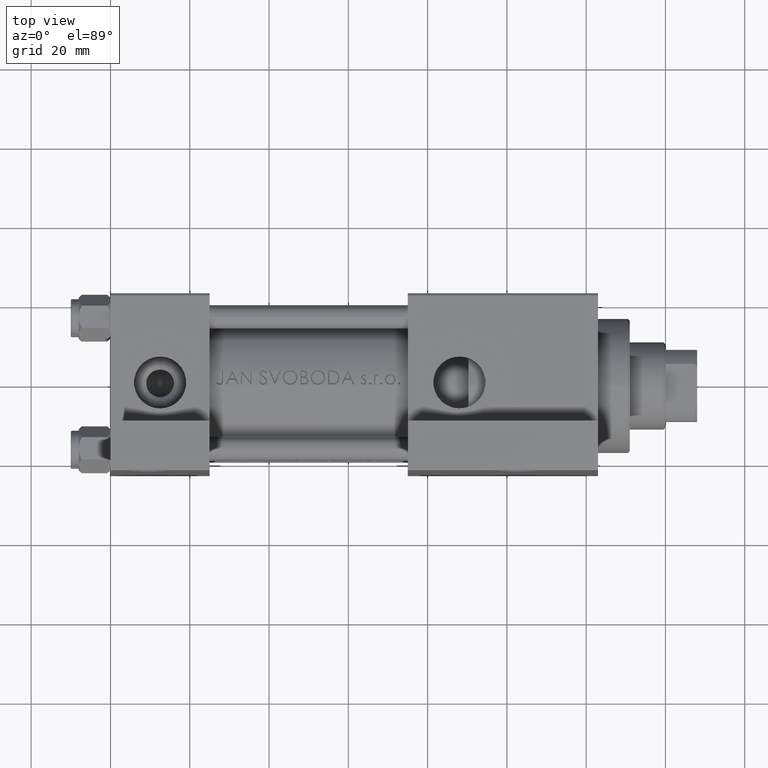
[diagram: clean part render]
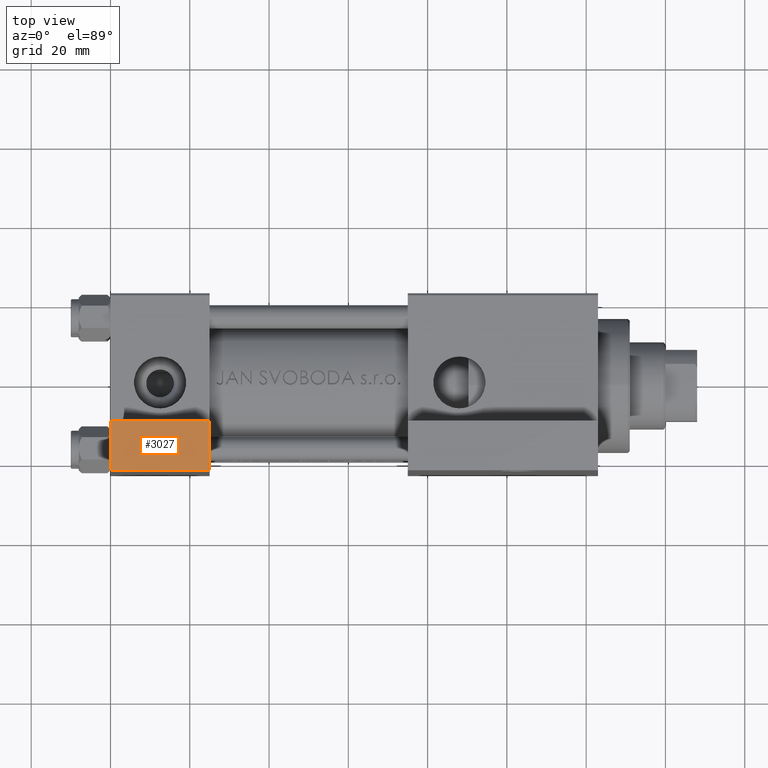
[diagram: same view with one face highlighted and labeled with its STEP entity id]
A machine part, top view. The second image highlights one B-rep face of the part: STEP entity #3027.
In plain terms, the highlighted planar face has unit normal (-0, 0, 1).
Its self-contained STEP definition (entity closure, byte-faithful):
#1429 = CARTESIAN_POINT ( 'NONE',  ( -3.595989349422702816E-17, -41.99999999999998579, 21.70567772497540560 ) ) ;
#2963 = ORIENTED_EDGE ( 'NONE', *, *, #33202, .F. ) ;
#3027 = ADVANCED_FACE ( 'NONE', ( #9840 ), #5062, .T. ) ;
#4375 = EDGE_CURVE ( 'NONE', #19734, #31668, #10098, .T. ) ;
#5062 = PLANE ( 'NONE',  #42939 ) ;
#6495 = CARTESIAN_POINT ( 'NONE',  ( -3.595989349422702816E-17, -41.99999999999998579, 21.70567772497540560 ) ) ;
#6932 = VECTOR ( 'NONE', #25734, 1000.000000000000000 ) ;
#7403 = LINE ( 'NONE', #32891, #12489 ) ;
#7962 = ORIENTED_EDGE ( 'NONE', *, *, #23433, .F. ) ;
#9128 = DIRECTION ( 'NONE',  ( -2.775557561562891844E-16, -1.000000000000000000, 1.734723475976806848E-16 ) ) ;
#9840 = FACE_OUTER_BOUND ( 'NONE', #33738, .T. ) ;
#10098 = LINE ( 'NONE', #6495, #6932 ) ;
#10285 = DIRECTION ( 'NONE',  ( 0.000000000000000000, -1.734723475976806848E-16, -1.000000000000000000 ) ) ;
#11588 = CARTESIAN_POINT ( 'NONE',  ( 25.00000000000000000, -42.00000000000000000, -9.999999999999994671 ) ) ;
#12489 = VECTOR ( 'NONE', #10285, 1000.000000000000000 ) ;
#17076 = VECTOR ( 'NONE', #23567, 1000.000000000000000 ) ;
#19523 = ORIENTED_EDGE ( 'NONE', *, *, #43646, .F. ) ;
#19731 = CARTESIAN_POINT ( 'NONE',  ( -3.595989349422856274E-17, -41.99999999999999289, -9.999999999999994671 ) ) ;
#19734 = VERTEX_POINT ( 'NONE', #32757 ) ;
#23433 = EDGE_CURVE ( 'NONE', #19734, #35696, #34620, .T. ) ;
#23567 = DIRECTION ( 'NONE',  ( 1.000000000000000000, -2.775557561562891844E-16, 0.000000000000000000 ) ) ;
#23751 = VERTEX_POINT ( 'NONE', #36689 ) ;
#23806 = DIRECTION ( 'NONE',  ( 1.000000000000000000, -2.775557561562891844E-16, 0.000000000000000000 ) ) ;
#25163 = ORIENTED_EDGE ( 'NONE', *, *, #4375, .T. ) ;
#25734 = DIRECTION ( 'NONE',  ( 0.000000000000000000, -1.734723475976806848E-16, -1.000000000000000000 ) ) ;
#29100 = CARTESIAN_POINT ( 'NONE',  ( -3.595989349422702816E-17, -41.99999999999999289, -22.49999999999999289 ) ) ;
#31668 = VERTEX_POINT ( 'NONE', #34534 ) ;
#32231 = LINE ( 'NONE', #29100, #43343 ) ;
#32757 = CARTESIAN_POINT ( 'NONE',  ( -3.595989349422702816E-17, -41.99999999999999289, -9.999999999999994671 ) ) ;
#32891 = CARTESIAN_POINT ( 'NONE',  ( 25.00000000000000000, -41.99999999999999289, 21.70567772497540560 ) ) ;
#33202 = EDGE_CURVE ( 'NONE', #23751, #31668, #32231, .T. ) ;
#33738 = EDGE_LOOP ( 'NONE', ( #7962, #25163, #2963, #19523 ) ) ;
#34534 = CARTESIAN_POINT ( 'NONE',  ( -3.595989349422702816E-17, -41.99999999999999289, -22.49999999999999289 ) ) ;
#34620 = LINE ( 'NONE', #19731, #17076 ) ;
#35696 = VERTEX_POINT ( 'NONE', #11588 ) ;
#36689 = CARTESIAN_POINT ( 'NONE',  ( 25.00000000000000000, -42.00000000000000000, -22.49999999999999289 ) ) ;
#42939 = AXIS2_PLACEMENT_3D ( 'NONE', #1429, #9128, #23806 ) ;
#43343 = VECTOR ( 'NONE', #43759, 1000.000000000000000 ) ;
#43646 = EDGE_CURVE ( 'NONE', #35696, #23751, #7403, .T. ) ;
#43759 = DIRECTION ( 'NONE',  ( -1.000000000000000000, 2.775557561562891351E-16, -0.000000000000000000 ) ) ;